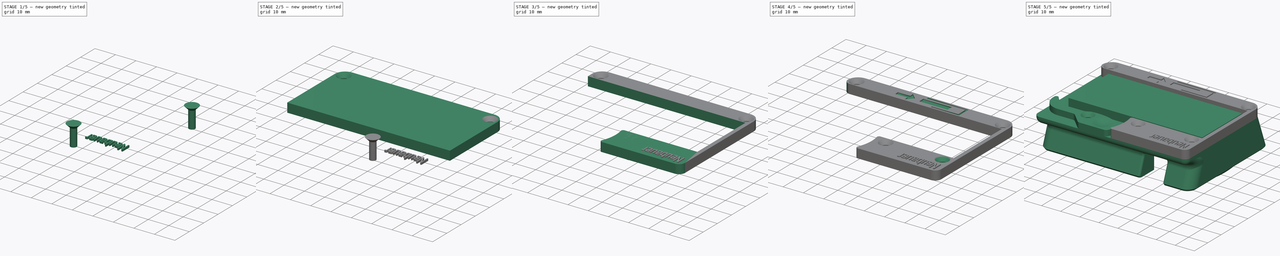
[diagram: build sequence overview — one tinted view per stage of 5, left to right]
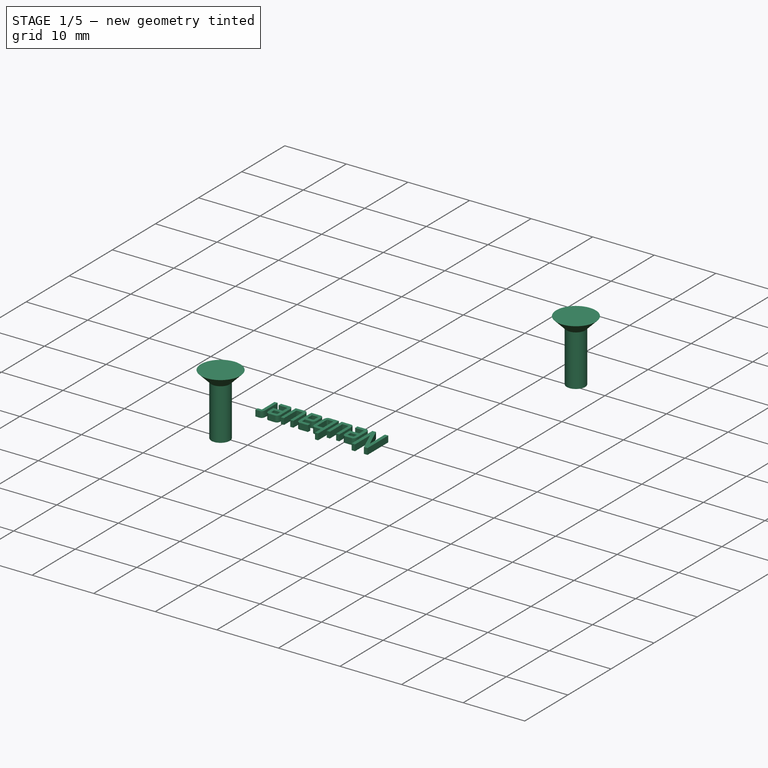
[diagram: stage 1 of 5 — iso view after this stage's code; geometry added in this stage tinted green]
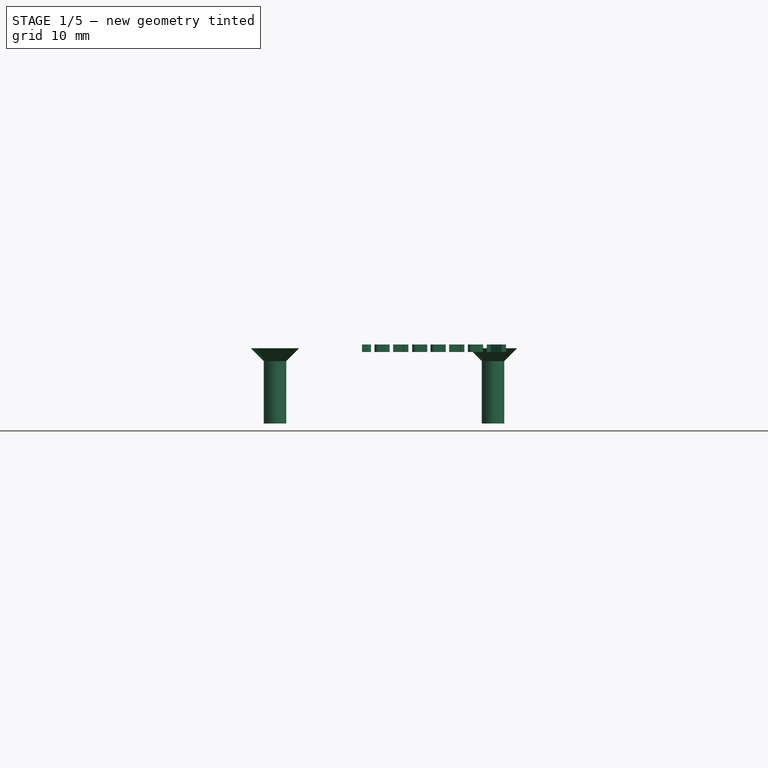
[diagram: stage 1 of 5 — front view after this stage's code; geometry added in this stage tinted green]
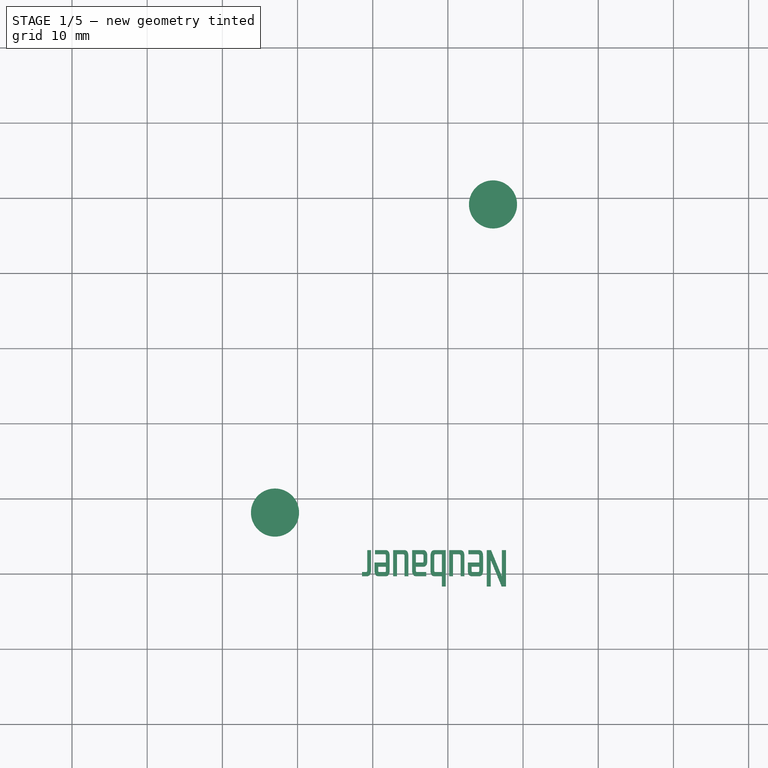
[diagram: stage 1 of 5 — top view after this stage's code; geometry added in this stage tinted green]
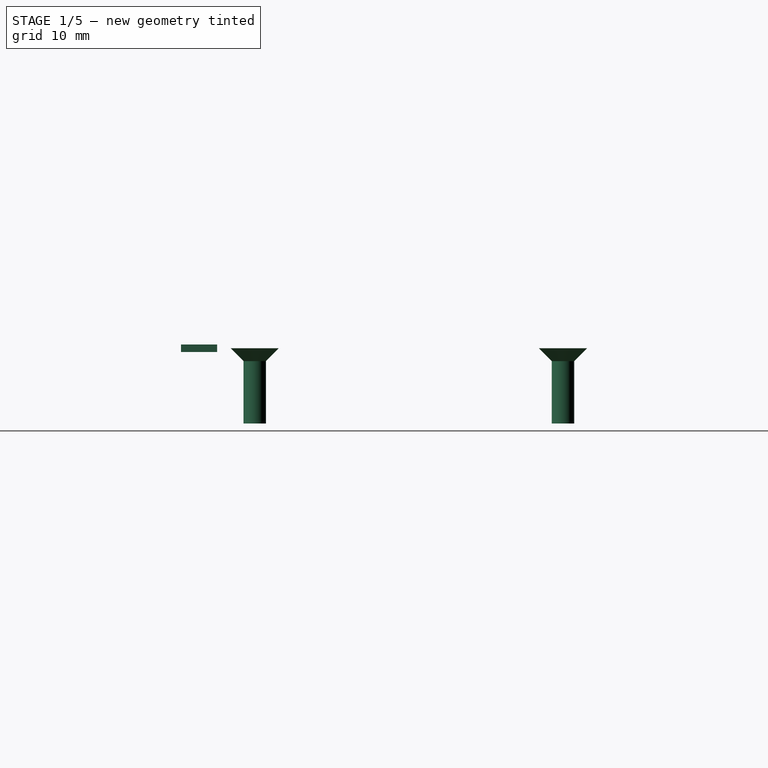
[diagram: stage 1 of 5 — right view after this stage's code; geometry added in this stage tinted green]
FCSTD DOCUMENT  (FreeCAD 0.16RUnknown)
Label: NeubauerTop
License: All rights reserved
LicenseURL: http://en.wikipedia.org/wiki/All_rights_reserved
objects: Part::FeaturePython×9, Sketcher::SketchObject×5, Part::Cut×4, App::DocumentObjectGroup×3, PartDesign::Pad×2, PartDesign::Pocket×2, Part::Fillet×2, Spreadsheet::Sheet×1, PartDesign::Revolution×1, Part::Mirroring×1, Part::MultiFuse×1, Part::Box×1, Part::Part2DObjectPython×1, Part::Extrusion×1
note: 35 computed .brp shape members not serialized (recipe doc carries the construction recipe); baked Part::Feature solids carry a one-line shape summary decoded from their .brp

FEATURE [Sketcher::SketchObject] Sketch007  label="Countersunk"
  Placement = pos=(0,0,0) rot=(0.57735,0.57735,0.57735;2.0944rad)
  sketch-geometry (5):
    g0: LineSegment StartX=3.2 StartY=0 StartZ=0 EndX=1.5 EndY=-1.7 EndZ=0
    g1: LineSegment StartX=0 StartY=-10 StartZ=0 EndX=0 EndY=0 EndZ=0
    g2: LineSegment StartX=0 StartY=0 StartZ=0 EndX=3.2 EndY=0 EndZ=0
    g3: LineSegment StartX=1.5 StartY=-1.7 StartZ=0 EndX=1.5 EndY=-10 EndZ=0
    g4: LineSegment StartX=1.5 StartY=-10 StartZ=0 EndX=0 EndY=-10 EndZ=0
  constraints (14):
    c: Coincident(g1,g2)
    c: Coincident(g2,g0)
    c: Horizontal(g2)
    c: Vertical(g1)
    c: Angle(g2,g0) = 0.785398
    c: Coincident(g1,g-1)
    c: DistanceY(g0,g-1) = 1.7
    c: DistanceX(g2,g2) = 3.2
    c: Coincident(g3,g4)
    c: Coincident(g3,g0)
    c: Horizontal(g4)
    c: Vertical(g3)
    c: Coincident(g4,g1)
    c: DistanceY(g1,g1) = 10
FEATURE [PartDesign::Revolution] Revolution  label="Countersunk001"
  Angle = 360
  Axis = (0,0,1)
  Base = (0,0,0)
  Placement = pos=(0,0,0) rot=(0.57735,0.57735,0.57735;2.0944rad)
  ReferenceAxis = -> Sketch007 [V_Axis]
  Reversed = true
  Sketch = -> Sketch007
FEATURE [Part::FeaturePython] Clone  label="Clone of Countersunk001"  # Draft clone (typed FeaturePython)
  Objects = -> [Revolution]
  Placement = pos=(36,19,4.5) rot=(0.57735,0.57735,0.57735;2.0944rad)
  Scale = (1,1,1)
FEATURE [Part::FeaturePython] Clone029006  label="Clone of Countersunk002"  # Draft clone (typed FeaturePython)
  Objects = -> [Revolution]
  Placement = pos=(7,-22,4.5) rot=(0.57735,0.57735,0.57735;2.0944rad)
  Scale = (1,1,1)
FEATURE [App::DocumentObjectGroup] Group002  label="Reference"
  Group = -> [SampleTray_01,Box,SampleFix_01]
FEATURE [Part::Part2DObjectPython] ShapeString001  label="TypeText"  # Draft 2D object (typed FeaturePython)
  FontFile = ./../../../Fonts/Xolonium-Regular.otf
  Size = 1.4
  String = Neubauer
  Tracking = 0
FEATURE [Part::Extrusion] Extrude  label="TypeText001"
  Base = -> ShapeString001
  Dir = (0,0,1)
  Solid = true
FEATURE [App::DocumentObjectGroup] Group001  label="Component_src"
  Group = -> [Revolution,ShapeString001,Extrude]
FEATURE [Part::FeaturePython] Clone029012  label="Clone of TypeText001"  # Draft clone (typed FeaturePython)
  Objects = -> [Extrude]
  Placement = pos=(38,-27,4) rot=(0,0,1;3.14159rad)
  Scale = (1,2,1)
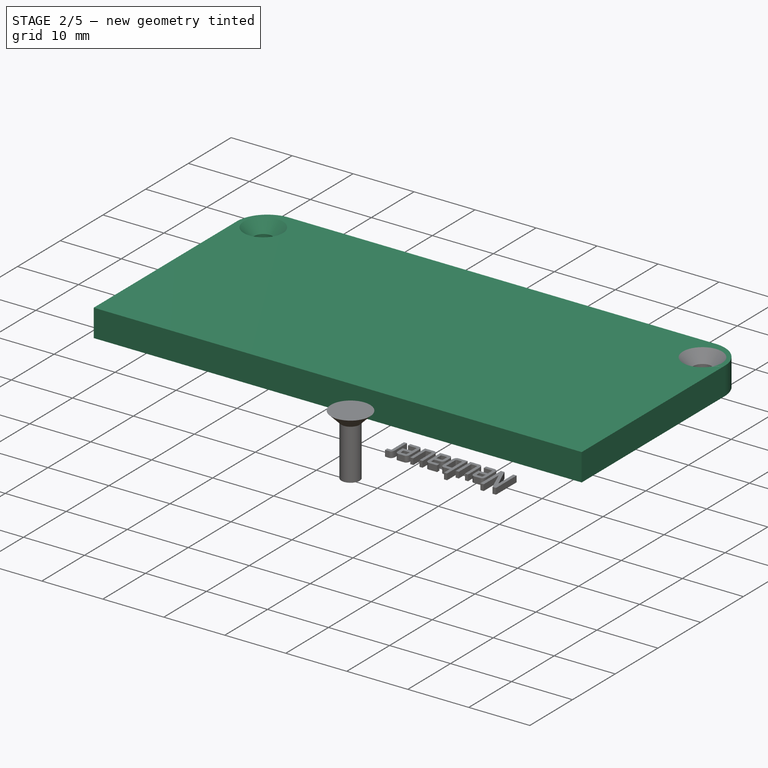
[diagram: stage 2 of 5 — iso view after this stage's code; geometry added in this stage tinted green]
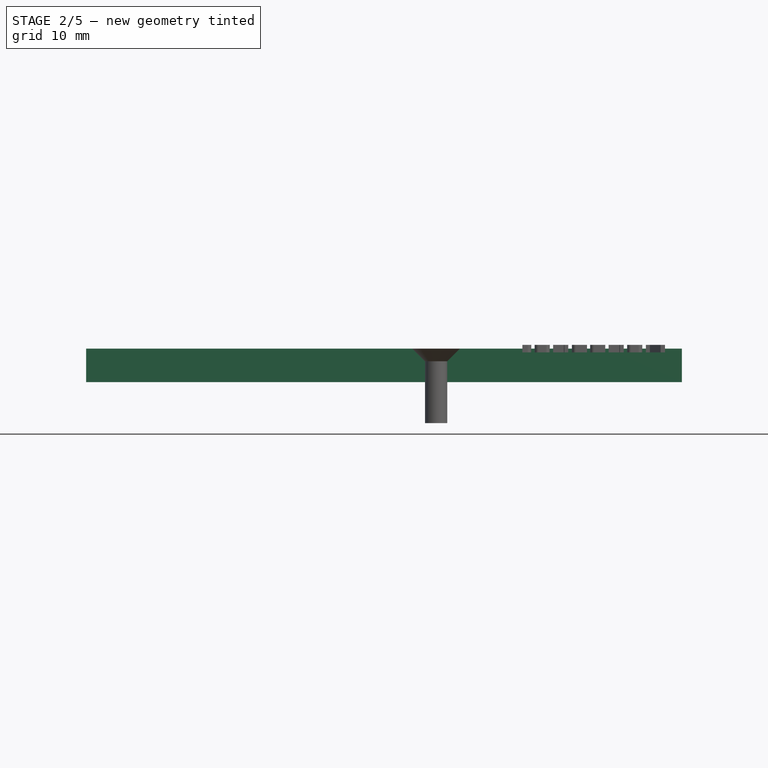
[diagram: stage 2 of 5 — front view after this stage's code; geometry added in this stage tinted green]
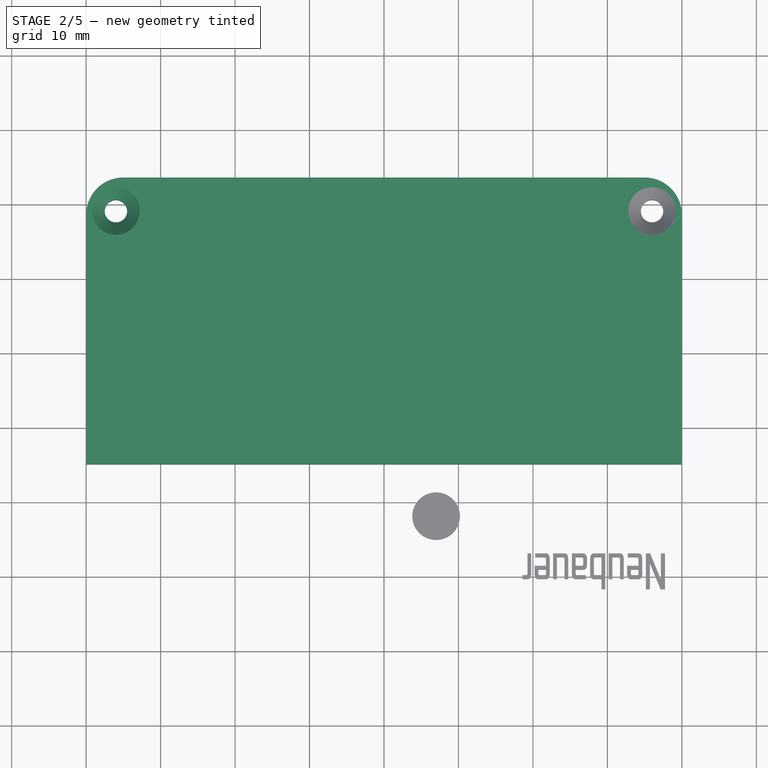
[diagram: stage 2 of 5 — top view after this stage's code; geometry added in this stage tinted green]
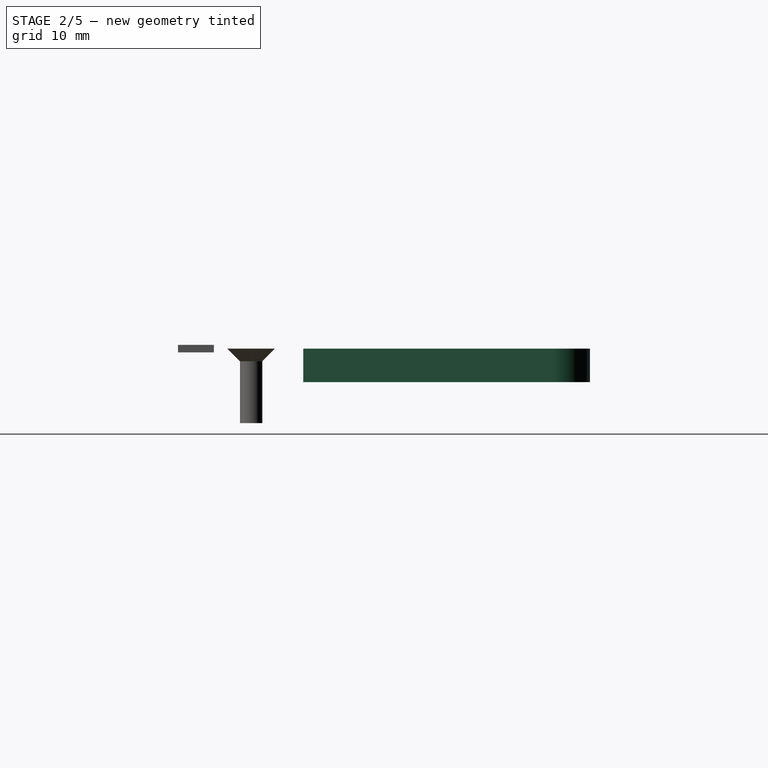
[diagram: stage 2 of 5 — right view after this stage's code; geometry added in this stage tinted green]
FEATURE [Spreadsheet::Sheet] Spreadsheet  label="pars"
  cells = A1=Bolts and Nuts; B1=Value; D1=Components; E1=Value; A2=Thread Tight Tolerance (Radius, ratio); B2(ThrTighRatio)=0.96; D2=Tight Cilinder Tolerances (Radius, mm); E2(CilTight)=0.1; A3=Thread Tight Tolerance (Radius, mm); B3(ThrTightmm)=0.1; D3=Loose Cilinder Tolerances (Radius, mm); E3(CilLoose)=0.1; A5=Nut Slot Width Clearance (mm); B5(NutWidthClearmm)=0.1; A6=Nut Slot Thickess Clearance (mm); B6(NutThickClearmm)=0.1; A13=Particular parameters; B13=Value
FEATURE [Sketcher::SketchObject] Sketch  label="Base"
  sketch-geometry (5):
    g0: LineSegment StartX=35 StartY=23.5 StartZ=0 EndX=0 EndY=23.5 EndZ=0
    g1: LineSegment StartX=0 StartY=23.5 StartZ=0 EndX=0 EndY=-15 EndZ=0
    g2: LineSegment StartX=0 StartY=-15 StartZ=0 EndX=40 EndY=-15 EndZ=0
    g3: LineSegment StartX=40 StartY=-15 StartZ=0 EndX=40 EndY=18.5 EndZ=0
    g4: ArcOfCircle CenterX=35 CenterY=18.5 CenterZ=0 NormalX=0 NormalY=0 NormalZ=1 Radius=5 StartAngle=4.61341e-06 EndAngle=1.5708
  constraints (16):
    c: Coincident(g0,g1)
    c: Coincident(g1,g2)
    c: Coincident(g2,g3)
    c: Coincident(g0,g4)
    c: Coincident(g4,g3)
    c: Tangent(g0,g4)
    c: Tangent(g4,g3)
    c: Horizontal(g0)
    c: Horizontal(g2)
    c: Vertical(g1)
    c: Vertical(g3)
    c: DistanceX(g2) = 40
    c: DistanceX(g0) = 35
    c: DistanceY(g0) = 23.5
    c: PointOnObject(g1,g-2)
    c: DistanceY(g1) = -15
FEATURE [PartDesign::Pad] Pad  label="Base001"
  Length = 4.5
  Length2 = 100
  Sketch = -> Sketch
  Type = 0
FEATURE [Part::Cut] Cut  label="BoltCut"
  Base = -> Pad
  Tool = -> Clone
FEATURE [Part::Mirroring] Part__Mirroring  label="BoltCut (Mirror #1)"
  Base = (0,0,0)
  Normal = (1,0,0)
  Source = -> Cut
FEATURE [Part::MultiFuse] Fusion  label="Mirroring"
  Shapes = -> [Part__Mirroring,Cut]
FEATURE [Part::FeaturePython] refine  label="refine_Mirroring"  # WARN: FeaturePython — macro-defined, semantics opaque (R4)
  Base = -> Fusion
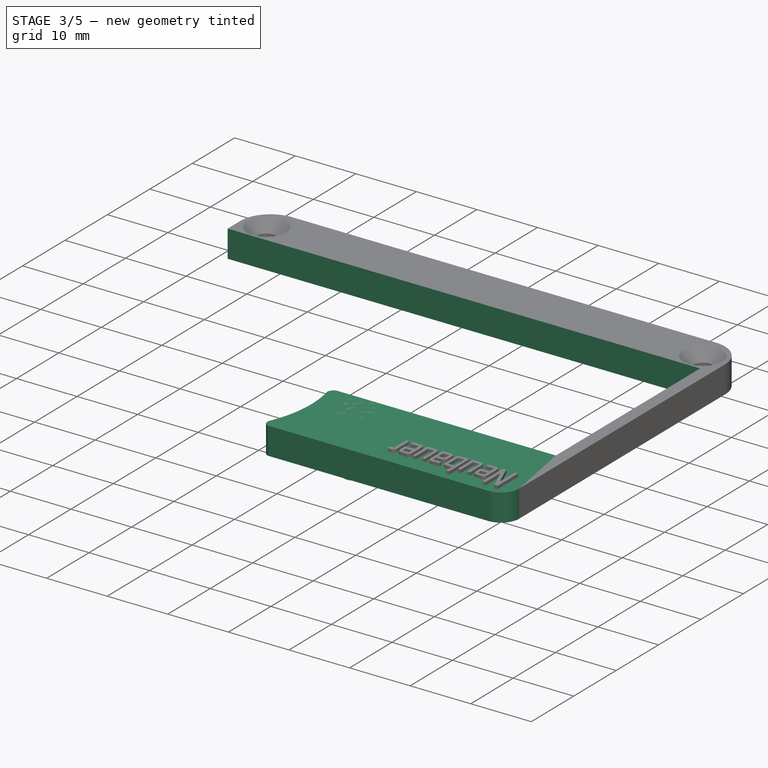
[diagram: stage 3 of 5 — iso view after this stage's code; geometry added in this stage tinted green]
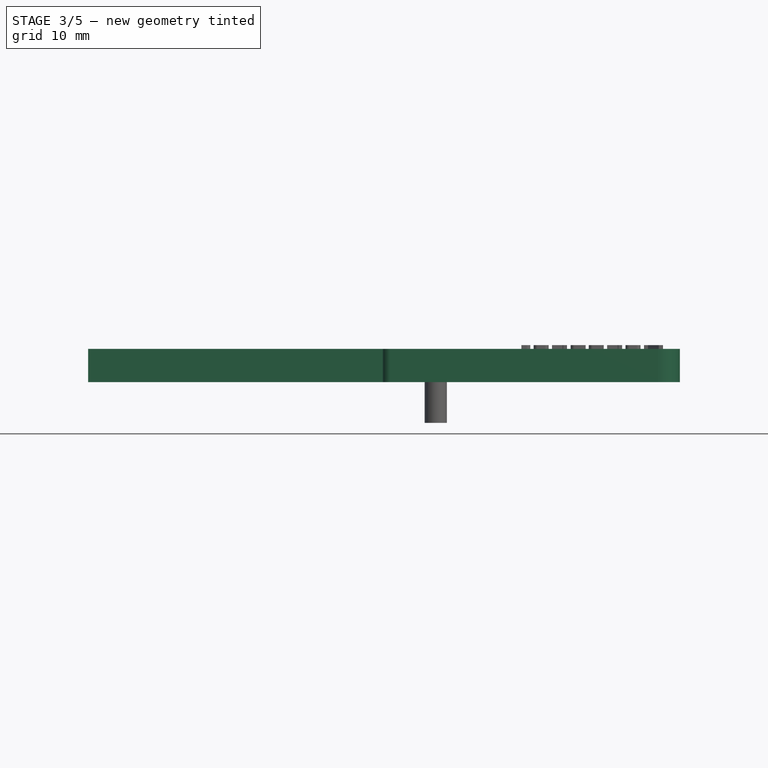
[diagram: stage 3 of 5 — front view after this stage's code; geometry added in this stage tinted green]
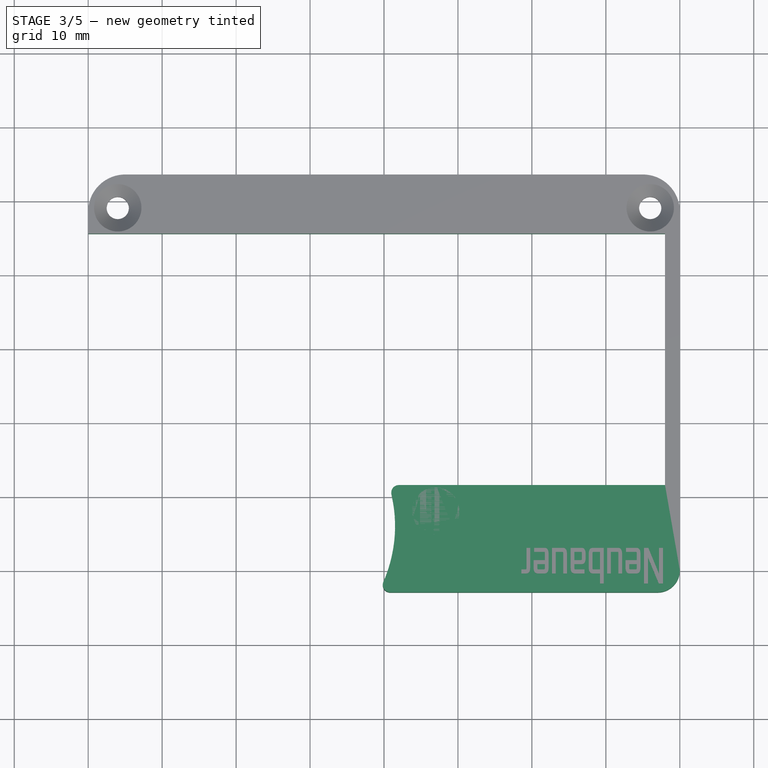
[diagram: stage 3 of 5 — top view after this stage's code; geometry added in this stage tinted green]
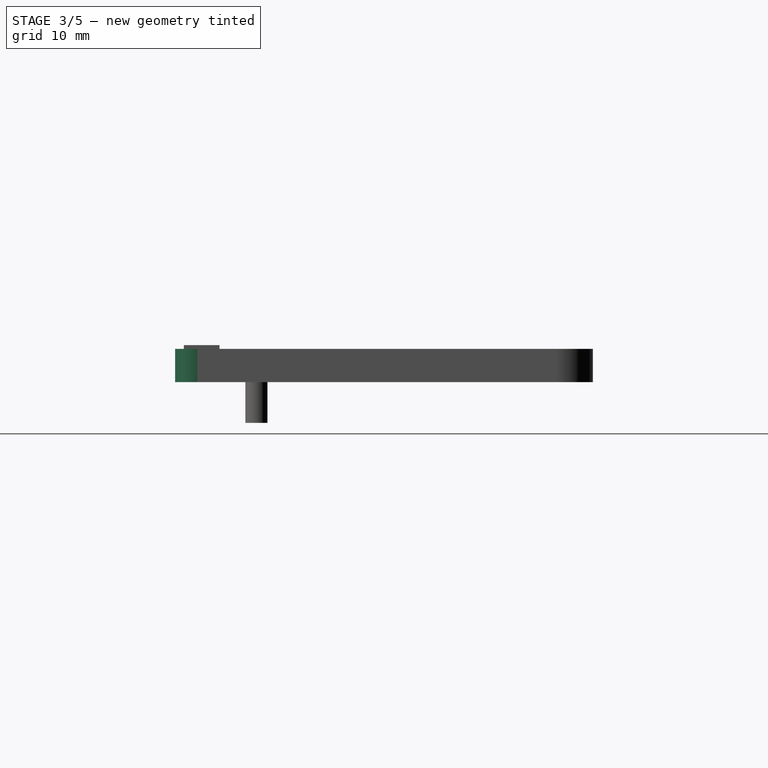
[diagram: stage 3 of 5 — right view after this stage's code; geometry added in this stage tinted green]
FEATURE [Sketcher::SketchObject] Sketch004  label="SampleCut"
  Placement = pos=(0,0,4.5) rot=(0,0,1;0rad)
  Support = -> refine [Face11]
  sketch-geometry (4):
    g0: LineSegment StartX=-49.3219 StartY=15.5 StartZ=0 EndX=68.9065 EndY=15.5 EndZ=0
    g1: LineSegment StartX=-49.3219 StartY=15.5 StartZ=0 EndX=-49.3219 EndY=-22.1345 EndZ=0
    g2: LineSegment StartX=-49.3219 StartY=-22.1345 StartZ=0 EndX=68.9065 EndY=-22.1345 EndZ=0
    g3: LineSegment StartX=68.9065 StartY=15.5 StartZ=0 EndX=68.9065 EndY=-22.1345 EndZ=0
  constraints (9):
    c: DistanceY(g0) = 15.5
    c: Coincident(g1,g2)
    c: Horizontal(g2)
    c: Vertical(g1)
    c: Coincident(g1,g0)
    c: Coincident(g3,g0)
    c: Horizontal(g0)
    c: Vertical(g3)
    c: Coincident(g3,g2)
FEATURE [PartDesign::Pocket] Pocket  label="SampleCut001"
  Length = 5
  Sketch = -> Sketch004
  Type = 1
FEATURE [Sketcher::SketchObject] Sketch008  label="SampleLimit"
  Placement = pos=(0,0,4.5) rot=(0,0,1;0rad)
  Support = -> Pocket [Face5]
  sketch-geometry (7):
    g0: LineSegment StartX=40 StartY=-30 StartZ=0 EndX=40 EndY=16 EndZ=0
    g1: LineSegment StartX=40 StartY=16 StartZ=0 EndX=38 EndY=16 EndZ=0
    g2: LineSegment StartX=38 StartY=16 StartZ=0 EndX=38 EndY=-18.5 EndZ=0
    g3: LineSegment StartX=37 StartY=-33 StartZ=0 EndX=-0.766799 EndY=-33 EndZ=0
    g4: LineSegment StartX=38 StartY=-18.5 StartZ=0 EndX=0.686533 EndY=-18.5 EndZ=0
    g5: ArcOfCircle CenterX=37 CenterY=-30 CenterZ=0 NormalX=0 NormalY=0 NormalZ=1 Radius=3 StartAngle=4.71239 EndAngle=6.28319
    g6: ArcOfCircle CenterX=-17.5 CenterY=-24 CenterZ=0 NormalX=0 NormalY=0 NormalZ=1 Radius=19 StartAngle=5.78972 EndAngle=6.57686
  constraints (21):
    c: Coincident(g0,g1)
    c: Coincident(g1,g2)
    c: Vertical(g0)
    c: Vertical(g2)
    c: Horizontal(g1)
    c: DistanceX(g0) = 40
    c: DistanceX(g1,g1) = 2
    c: DistanceY(g1) = 16
    c: Coincident(g4,g2)
    c: Horizontal(g4)
    c: Horizontal(g3)
    c: Tangent(g0,g5) = -1.5708
    c: Tangent(g3,g5) = 1.5708
    c: Coincident(g6,g4)
    c: Coincident(g6,g3)
    c: DistanceY(g6) = -24
    c: DistanceX(g6) = -17.5
    c: DistanceY(g3) = -33
    c: Radius(g5) = 3
    c: Radius(g6) = 19
    c: DistanceY(g2) = -18.5
FEATURE [PartDesign::Pad] Pad001  label="SampleLimit001"
  Length = 10
  Length2 = 100
  Reversed = true
  Sketch = -> Sketch008
  Type = 3
  UpToFace = -> Pocket [Face4]
FEATURE [Part::FeaturePython] refine001  label="refine_SampleLimit001"  # WARN: FeaturePython — macro-defined, semantics opaque (R4)
  Base = -> Pad001
FEATURE [Part::Fillet] Fillet  label="NiceFillet"
  Base = -> refine001
  Edges = 2 edges r=1: [Edge21,Edge25]
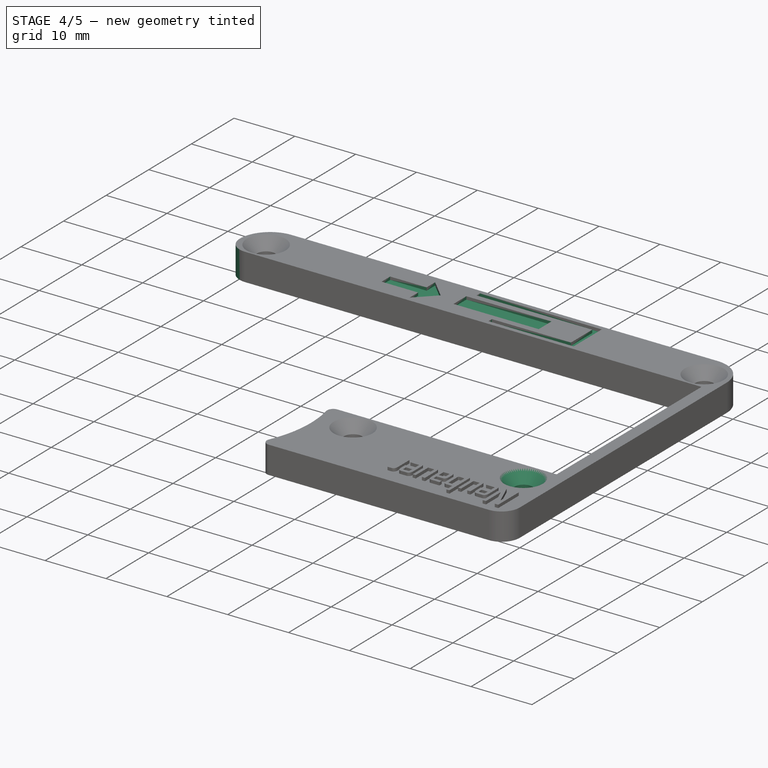
[diagram: stage 4 of 5 — iso view after this stage's code; geometry added in this stage tinted green]
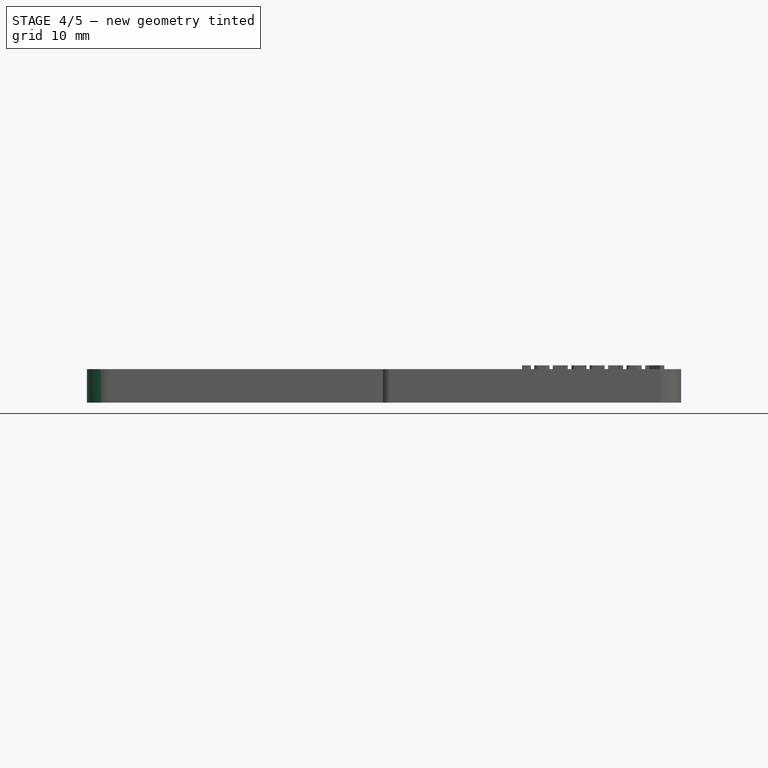
[diagram: stage 4 of 5 — front view after this stage's code; geometry added in this stage tinted green]
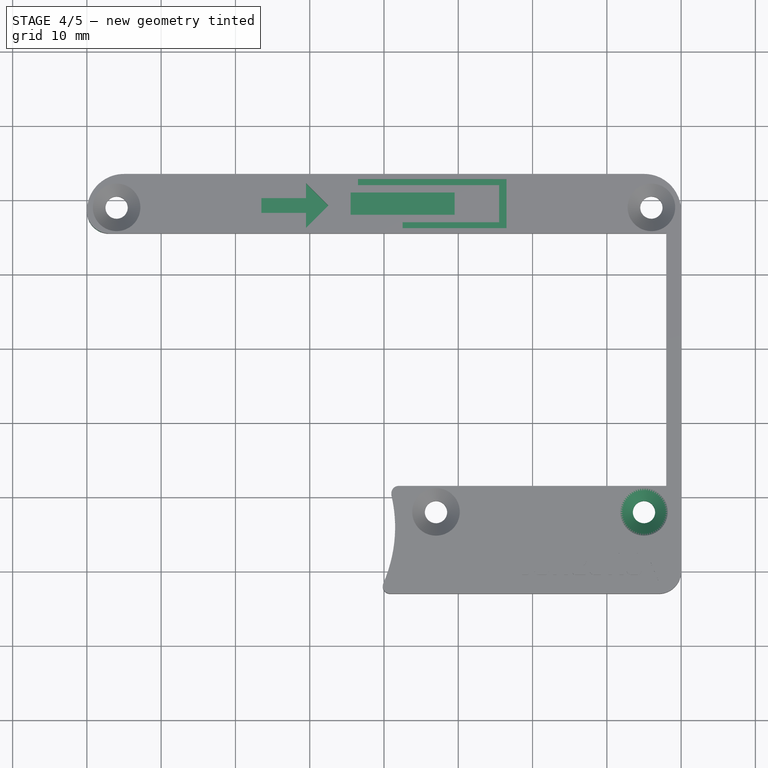
[diagram: stage 4 of 5 — top view after this stage's code; geometry added in this stage tinted green]
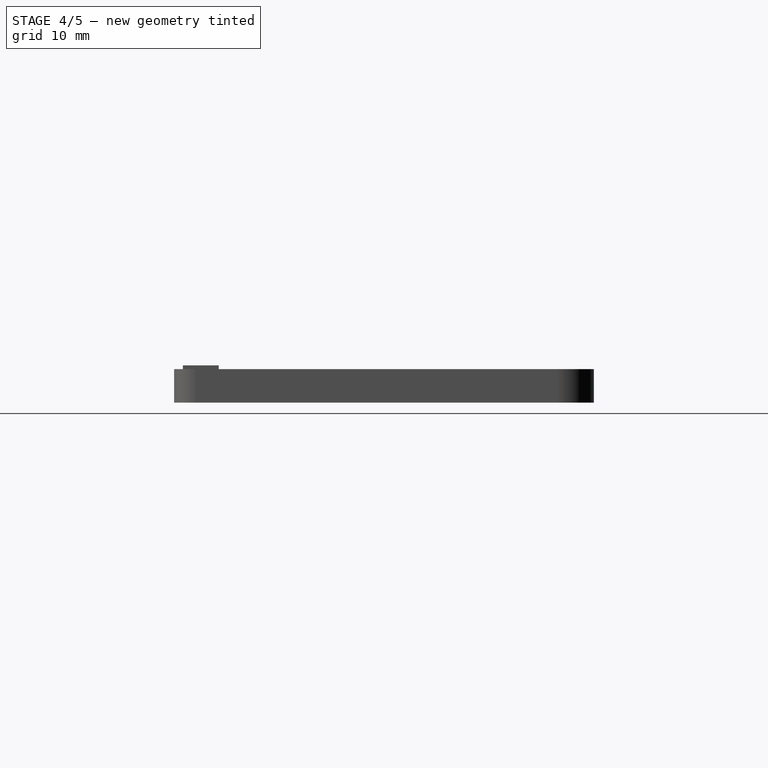
[diagram: stage 4 of 5 — right view after this stage's code; geometry added in this stage tinted green]
FEATURE [Part::FeaturePython] Clone029007  label="Clone of Countersunk003"  # Draft clone (typed FeaturePython)
  Objects = -> [Revolution]
  Placement = pos=(35,-22,4.5) rot=(0.57735,0.57735,0.57735;2.0944rad)
  Scale = (1,1,1)
FEATURE [Part::Cut] Cut001
  Base = -> Fillet
  Tool = -> Clone029006
FEATURE [Part::Cut] Cut002  label="FixBolts"
  Base = -> Cut001
  Tool = -> Clone029007
FEATURE [Part::Fillet] Fillet001  label="EasyEntry"
  Base = -> Cut002
  Edges = 1 edges r=3: [Edge40]
FEATURE [Sketcher::SketchObject] Sketch010  label="HelpSign"
  Placement = pos=(0,0,4.5) rot=(0,0,1;0rad)
  Support = -> Fillet001 [Face1]
  sketch-geometry (19):
    g0: LineSegment StartX=-3.5 StartY=22.8 StartZ=0 EndX=16.5 EndY=22.8 EndZ=0
    g1: LineSegment StartX=16.5 StartY=22.8 StartZ=0 EndX=16.5 EndY=16.2 EndZ=0
    g2: LineSegment StartX=16.5 StartY=16.2 StartZ=0 EndX=2.5 EndY=16.2 EndZ=0
    g3: LineSegment StartX=2.5 StartY=16.2 StartZ=0 EndX=2.5 EndY=17 EndZ=0
    g4: LineSegment StartX=2.5 StartY=17 StartZ=0 EndX=15.5 EndY=17 EndZ=0
    g5: LineSegment StartX=15.5 StartY=17 StartZ=0 EndX=15.5 EndY=22 EndZ=0
    g6: LineSegment StartX=15.5 StartY=22 StartZ=0 EndX=-3.5 EndY=22 EndZ=0
    g7: LineSegment StartX=-3.5 StartY=22 StartZ=0 EndX=-3.5 EndY=22.8 EndZ=0
    g8: LineSegment StartX=-4.5 StartY=21 StartZ=0 EndX=9.5 EndY=21 EndZ=0
    g9: LineSegment StartX=9.5 StartY=21 StartZ=0 EndX=9.5 EndY=18 EndZ=0
    g10: LineSegment StartX=9.5 StartY=18 StartZ=0 EndX=-4.5 EndY=18 EndZ=0
    g11: LineSegment StartX=-4.5 StartY=18 StartZ=0 EndX=-4.5 EndY=21 EndZ=0
    g12: LineSegment StartX=-16.5 StartY=20.25 StartZ=0 EndX=-10.5 EndY=20.25 EndZ=0
    g13: LineSegment StartX=-10.5 StartY=20.25 StartZ=0 EndX=-10.5 EndY=22.25 EndZ=0
    g14: LineSegment StartX=-10.5 StartY=22.25 StartZ=0 EndX=-7.5 EndY=19.25 EndZ=0
    g15: LineSegment StartX=-7.5 StartY=19.25 StartZ=0 EndX=-10.5 EndY=16.25 EndZ=0
    g16: LineSegment StartX=-10.5 StartY=16.25 StartZ=0 EndX=-10.5 EndY=18.25 EndZ=0
    g17: LineSegment StartX=-10.5 StartY=18.25 StartZ=0 EndX=-16.5 EndY=18.25 EndZ=0
    g18: LineSegment StartX=-16.5 StartY=18.25 StartZ=0 EndX=-16.5 EndY=20.25 EndZ=0
  constraints (57):
    c: Coincident(g0,g1)
    c: Coincident(g1,g2)
    c: Coincident(g2,g3)
    c: Coincident(g3,g4)
    c: Coincident(g4,g5)
    c: Coincident(g5,g6)
    c: Coincident(g6,g7)
    c: Coincident(g7,g0)
    c: Vertical(g7)
    c: Vertical(g3)
    c: Vertical(g5)
    c: Vertical(g1)
    c: Horizontal(g0)
    c: Horizontal(g6)
    c: Horizontal(g4)
    c: Horizontal(g2)
    c: Equal(g3,g7)
    c: Coincident(g8,g9)
    c: Coincident(g9,g10)
    c: Coincident(g10,g11)
    c: Coincident(g11,g8)
    c: Horizontal(g8)
    c: Horizontal(g10)
    c: Vertical(g9)
    c: Vertical(g11)
    c: Coincident(g12,g13)
    c: Coincident(g13,g14)
    c: Coincident(g14,g15)
    c: Coincident(g15,g16)
    c: Coincident(g16,g17)
    c: Coincident(g17,g18)
    c: Coincident(g18,g12)
    c: Vertical(g18)
    c: Vertical(g13)
    c: Vertical(g16)
    c: Horizontal(g12)
    c: Horizontal(g17)
    c: PointOnObject(g16,g13)
    c: Perpendicular(g15,g14)
    c: Angle(g13,g14) = 0.785398
    c: Equal(g13,g16)
    c: DistanceY(g5,g0) = 0.8
    c: DistanceX(g5,g0) = 1
    c: DistanceY(g5,g5) = 5
    c: DistanceY(g11,g11) = 3
    c: DistanceX(g8,g8) = 14
    c: DistanceY(g18,g18) = 2
    c: DistanceY(g13,g13) = 2
    c: DistanceX(g12,g12) = 6
    c: DistanceX(g8,g0) = 7
    c: DistanceY(g3,g9) = 1
    c: DistanceY(g14,g8) = 1.75
    c: DistanceX(g14,g8) = 3
    c: DistanceX(g2,g9) = 7
    c: DistanceX(g8,g6) = 1
    c: DistanceY(g14) = 19.25
    c: DistanceX(g12) = -16.5
FEATURE [PartDesign::Pocket] Pocket001  label="HelpSign001"
  Length = 0.5
  Sketch = -> Sketch010
  Type = 0
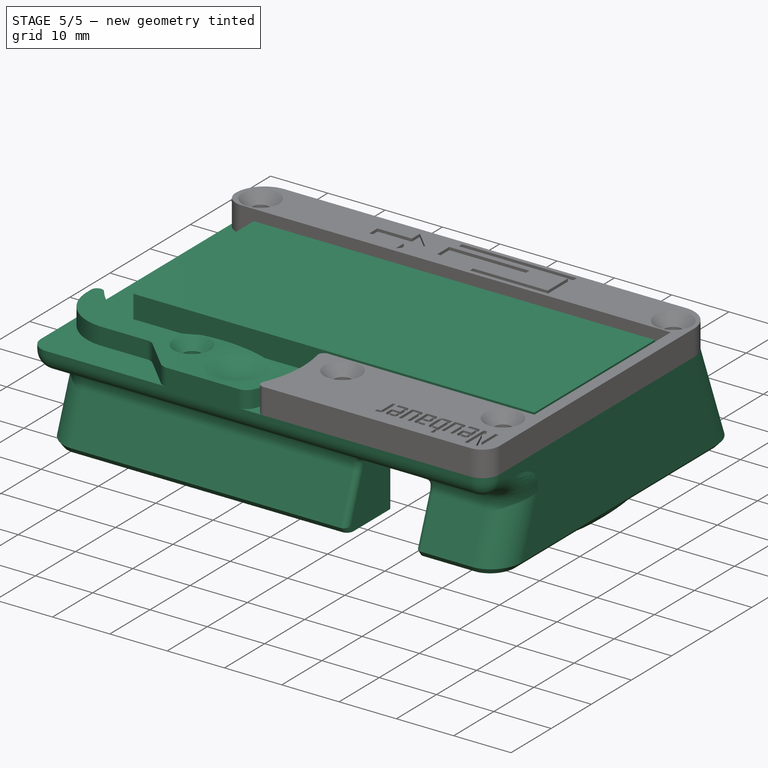
[diagram: stage 5 of 5 — iso view after this stage's code; geometry added in this stage tinted green]
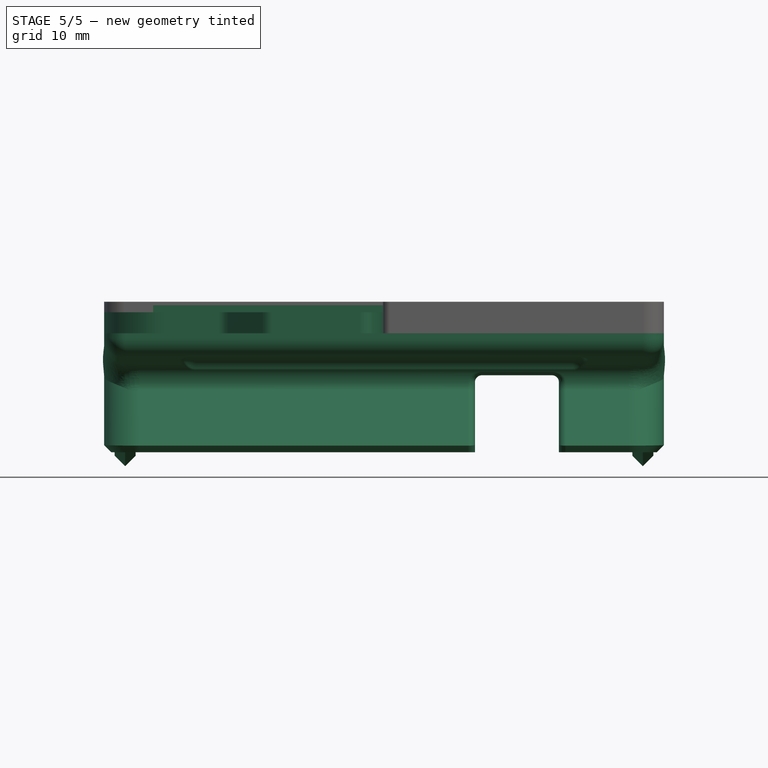
[diagram: stage 5 of 5 — front view after this stage's code; geometry added in this stage tinted green]
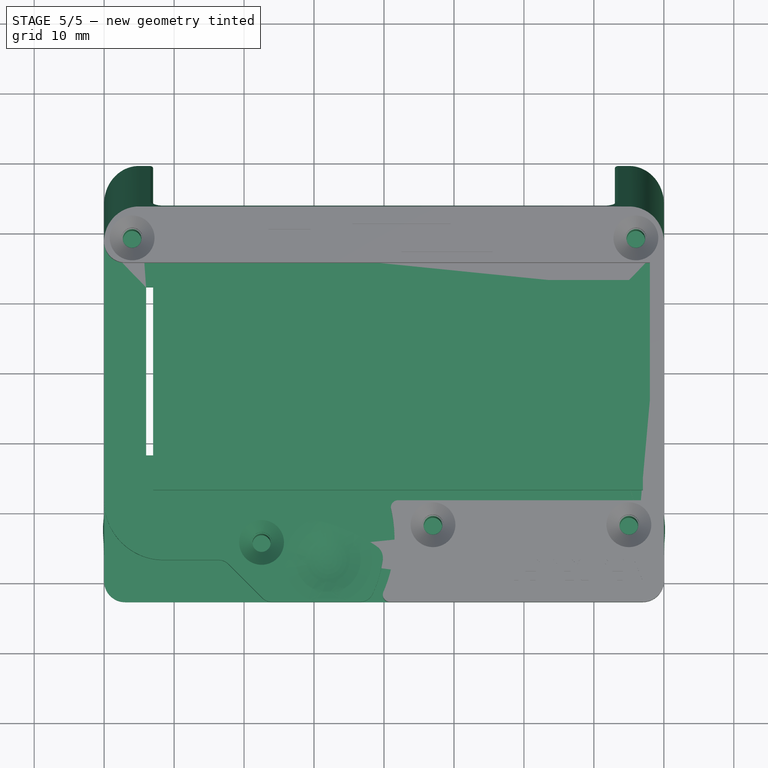
[diagram: stage 5 of 5 — top view after this stage's code; geometry added in this stage tinted green]
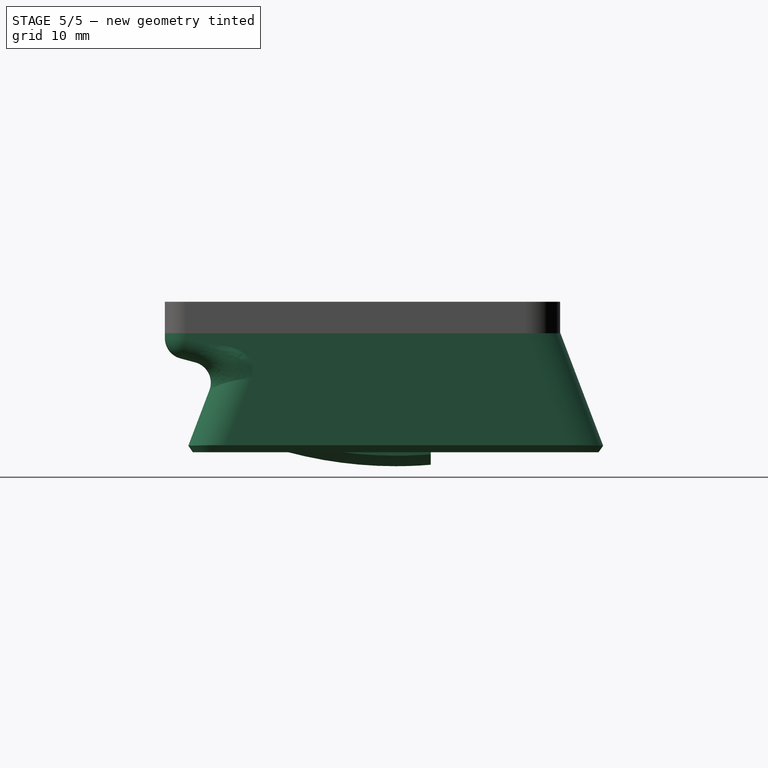
[diagram: stage 5 of 5 — right view after this stage's code; geometry added in this stage tinted green]
FEATURE [Part::FeaturePython] SampleTray_01  label="SampleTray"  # a2plus imported part (geometry in sourceFile) (typed FeaturePython)
  Placement = pos=(0,0,-17) rot=(0,0,1;3.14159rad)
  fixedPosition = true
  sourceFile = ./SampleTray.fcstd
  timeLastImport = 1.50065e+09
  updateColors = true
FEATURE [Part::Box] Box
  Height = 4
  Length = 70
  Placement = pos=(-33,-17,0) rot=(0,0,1;0rad)
  Width = 30
FEATURE [Part::FeaturePython] SampleFix_01  label="SampleFix"  # a2plus imported part (geometry in sourceFile) (typed FeaturePython)
  Placement = pos=(0,0,0) rot=(0,0,1;3.14159rad)
  fixedPosition = false
  sourceFile = ./SampleFix.fcstd
  timeLastImport = 1.50098e+09
  updateColors = true
FEATURE [Part::Cut] Cut003  label="ClassText"
  Base = -> Pocket001
  Tool = -> Clone029012
FEATURE [App::DocumentObjectGroup] Group  label="src"
  Group = -> [Fusion,Pocket,refine,refine001,Cut002,Cut003,Fillet001]
FEATURE [Part::FeaturePython] Clone029013  label="NeubauerTop"  # Draft clone (typed FeaturePython)
  Objects = -> [Cut003]
  Scale = (1,1,1)
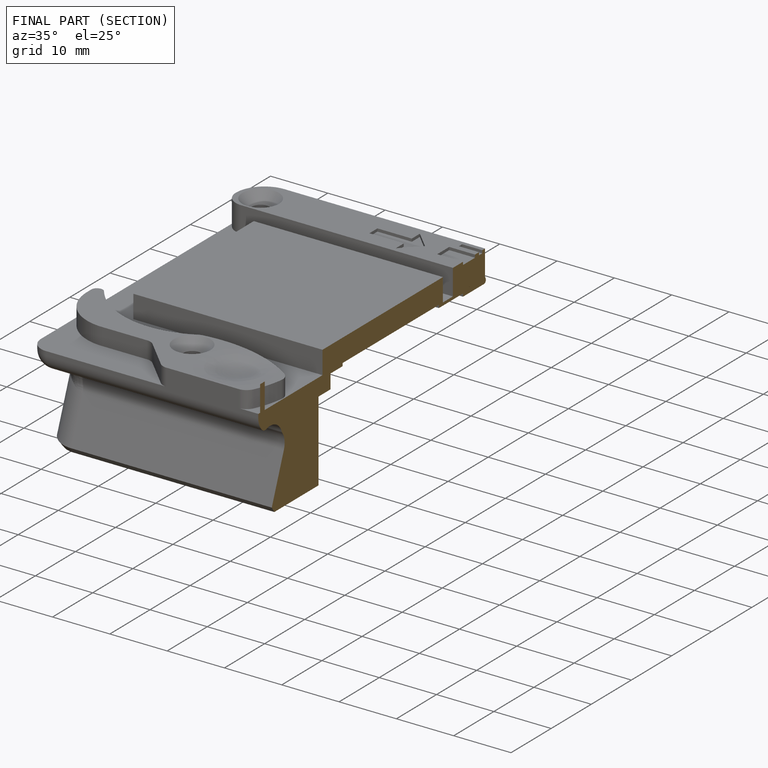
[diagram: finished part — half-section view (interior)]
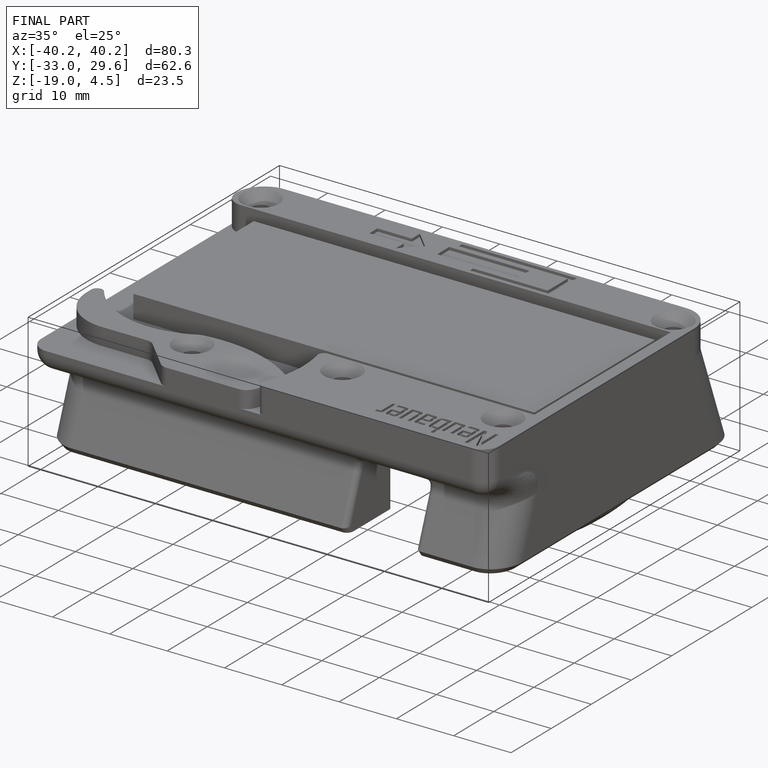
[diagram: finished part — iso view with bounding-box wireframe]
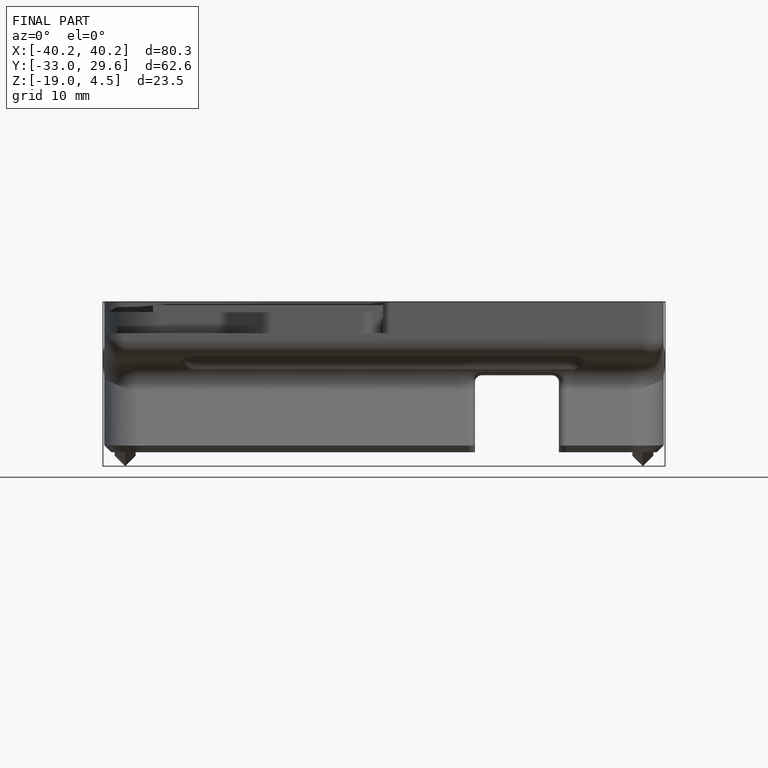
[diagram: finished part — front view with bounding-box wireframe]
